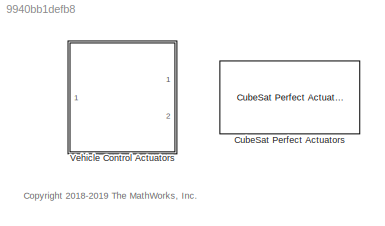
MODEL slx_9940bb1defb8
KIND library
CONFIG AbsTol = auto
CONFIG EnableMultiTasking = off
CONFIG FixedStep = auto
CONFIG MaxStep = auto
CONFIG MinStep = auto
CONFIG RelTol = 1e-3
CONFIG SampleTimeConstraint = Unconstrained
CONFIG Solver = VariableStepAuto
CONFIG SolverName = VariableStepAuto
CONFIG StartTime = 0.0
CONFIG StopTime = 10.0
BLOCK [Reference] CubeSat Perfect Actuators  REF=asbCubeSatBlockLib/Actuators/CubeSat Perfect Actuators
  Ports = [1, 2]
  SourceBlock = asbCubeSatBlockLib/Actuators/CubeSat Perfect Actuators
  SourceProductBaseCode = AERO_CUBESAT
  SourceProductName = Aerospace Blockset CubeSat Simulation Library
  SourceType = SubSystem
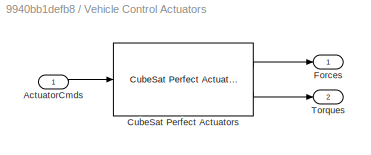
BLOCK [SubSystem] Vehicle Control Actuators
  Ports = [1, 2]
  RequestExecContextInheritance = off
BLOCK [Outport] Vehicle Control Actuators/ Forces
  IconDisplay = Port number
  VectorParamsAs1DForOutWhenUnconnected = off
BLOCK [Outport] Vehicle Control Actuators/ Torques
  IconDisplay = Port number
  Port = 2
  VectorParamsAs1DForOutWhenUnconnected = off
BLOCK [Inport] Vehicle Control Actuators/ActuatorCmds
  IconDisplay = Port number
BLOCK [Reference] Vehicle Control Actuators/CubeSat Perfect Actuators  REF=asbCubeSatBlockLib/Actuators/CubeSat Perfect Actuators
  Ports = [1, 2]
  SourceBlock = asbCubeSatBlockLib/Actuators/CubeSat Perfect Actuators
  SourceProductBaseCode = AERO_CUBESAT
  SourceProductName = Aerospace Blockset CubeSat Simulation Library
  SourceType = SubSystem
ANNOTATION (root): <copyright redacted>
LINE Vehicle Control Actuators/ActuatorCmds:1 -> Vehicle Control Actuators/CubeSat Perfect Actuators:1
LINE Vehicle Control Actuators/CubeSat Perfect Actuators:1 -> Vehicle Control Actuators/ Forces:1
LINE Vehicle Control Actuators/CubeSat Perfect Actuators:2 -> Vehicle Control Actuators/ Torques:1
